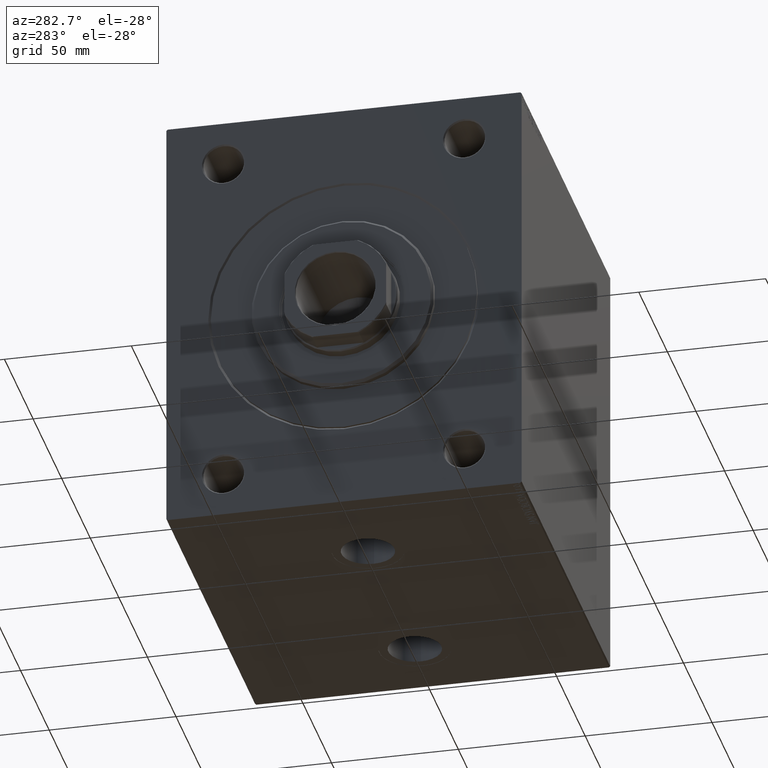
[diagram: clean part render]
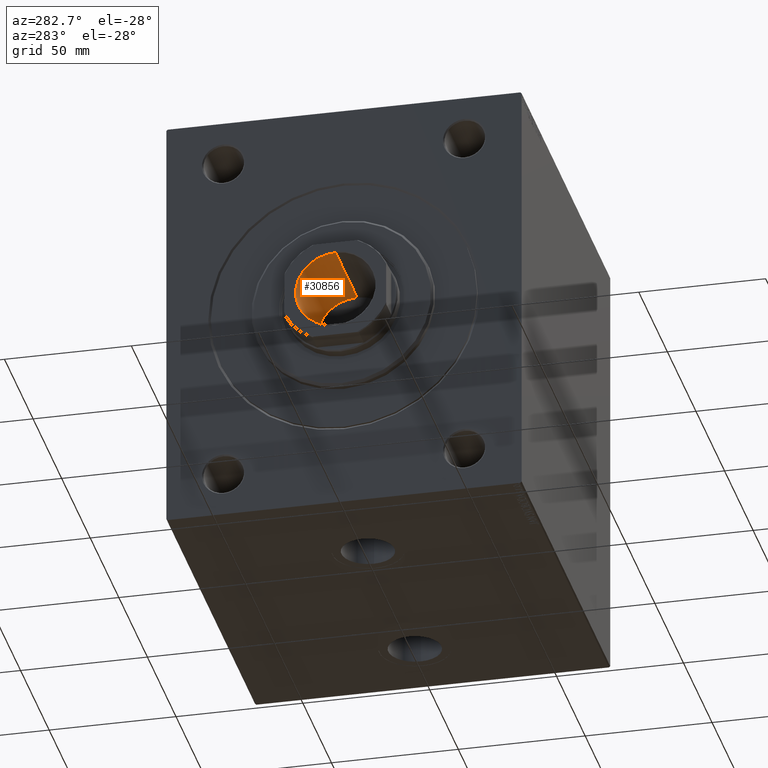
[diagram: same view with one face highlighted and labeled with its STEP entity id]
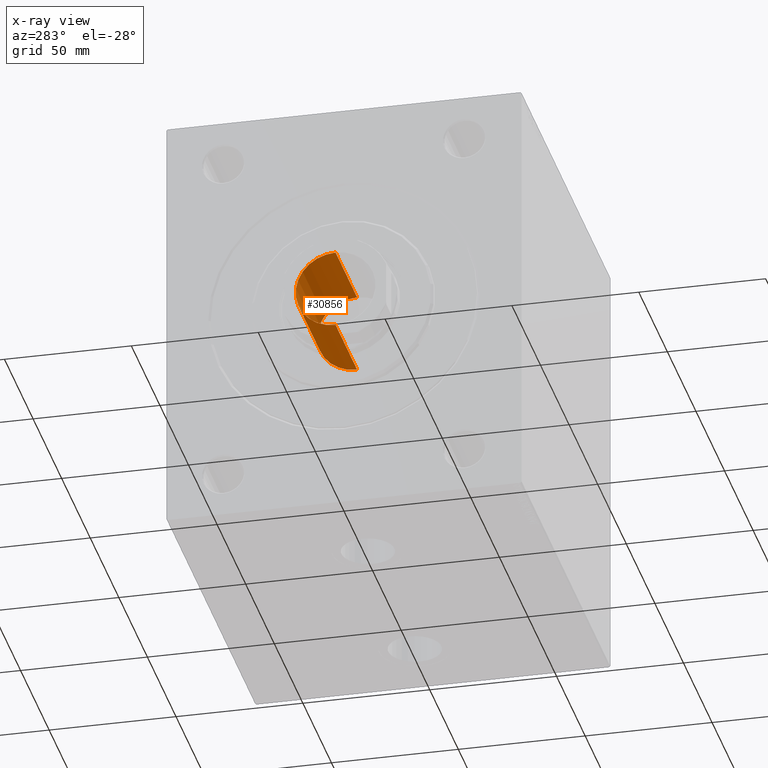
[diagram: x-ray of the same camera — body ghosted, the highlighted face saturated]
A machine part, auxiliary view. The second image highlights one B-rep face of the part: STEP entity #30856.
The next image is the same camera in x-ray: the body ghosted, the highlighted face saturated — about 0% of this face is hidden behind the body in this view.
In plain terms, the highlighted cylindrical surface (partial cylindrical patch) has radius 15.75 mm, axis along (-1, 0, 0).
Its self-contained STEP definition (entity closure, byte-faithful):
#455 = DIRECTION ( 'NONE',  ( -0.000000000000000000, -0.000000000000000000, 1.000000000000000000 ) ) ;
#719 = ORIENTED_EDGE ( 'NONE', *, *, #20264, .T. ) ;
#723 = CARTESIAN_POINT ( 'NONE',  ( 15.74999999999999289, 0.000000000000000000, 143.6999999999999602 ) ) ;
#2515 = LINE ( 'NONE', #37402, #18879 ) ;
#2877 = VERTEX_POINT ( 'NONE', #20070 ) ;
#3102 = AXIS2_PLACEMENT_3D ( 'NONE', #17177, #31255, #45357 ) ;
#4219 = DIRECTION ( 'NONE',  ( 1.000000000000000000, 0.000000000000000000, 0.000000000000000000 ) ) ;
#5141 = AXIS2_PLACEMENT_3D ( 'NONE', #21495, #455, #22420 ) ;
#5751 = DIRECTION ( 'NONE',  ( -0.000000000000000000, -0.000000000000000000, 1.000000000000000000 ) ) ;
#11061 = ORIENTED_EDGE ( 'NONE', *, *, #15377, .F. ) ;
#11613 = DIRECTION ( 'NONE',  ( -0.000000000000000000, -0.000000000000000000, 1.000000000000000000 ) ) ;
#12687 = CIRCLE ( 'NONE', #3102, 15.74999999999999289 ) ;
#12711 = VERTEX_POINT ( 'NONE', #723 ) ;
#15377 = EDGE_CURVE ( 'NONE', #2877, #36367, #2515, .T. ) ;
#17177 = CARTESIAN_POINT ( 'NONE',  ( 0.000000000000000000, 0.000000000000000000, 106.0000000000000142 ) ) ;
#18879 = VECTOR ( 'NONE', #5751, 1000.000000000000000 ) ;
#18938 = FACE_OUTER_BOUND ( 'NONE', #37905, .T. ) ;
#19240 = CARTESIAN_POINT ( 'NONE',  ( 0.000000000000000000, 0.000000000000000000, 143.6999999999999602 ) ) ;
#20070 = CARTESIAN_POINT ( 'NONE',  ( -15.74999999999999289, 1.928818708657080556E-15, 106.0000000000000142 ) ) ;
#20264 = EDGE_CURVE ( 'NONE', #12711, #36367, #42597, .T. ) ;
#21495 = CARTESIAN_POINT ( 'NONE',  ( 0.000000000000000000, 0.000000000000000000, 144.0000000000000284 ) ) ;
#22420 = DIRECTION ( 'NONE',  ( 1.000000000000000000, 0.000000000000000000, 0.000000000000000000 ) ) ;
#22675 = AXIS2_PLACEMENT_3D ( 'NONE', #19240, #36106, #4219 ) ;
#28472 = CARTESIAN_POINT ( 'NONE',  ( 15.74999999999999289, 0.000000000000000000, 144.0000000000000284 ) ) ;
#29383 = LINE ( 'NONE', #28472, #43727 ) ;
#29709 = CARTESIAN_POINT ( 'NONE',  ( 15.74999999999999289, 0.000000000000000000, 106.0000000000000142 ) ) ;
#30856 = ADVANCED_FACE ( 'NONE', ( #18938 ), #35810, .F. ) ;
#31112 = CARTESIAN_POINT ( 'NONE',  ( -15.74999999999999289, 1.928818708657080556E-15, 143.6999999999999602 ) ) ;
#31255 = DIRECTION ( 'NONE',  ( -0.000000000000000000, -0.000000000000000000, 1.000000000000000000 ) ) ;
#31373 = ORIENTED_EDGE ( 'NONE', *, *, #41984, .F. ) ;
#35810 = CYLINDRICAL_SURFACE ( 'NONE', #5141, 15.74999999999999289 ) ;
#36106 = DIRECTION ( 'NONE',  ( 0.000000000000000000, 0.000000000000000000, 1.000000000000000000 ) ) ;
#36367 = VERTEX_POINT ( 'NONE', #31112 ) ;
#37402 = CARTESIAN_POINT ( 'NONE',  ( -15.74999999999999289, 1.928818708657080556E-15, 144.0000000000000284 ) ) ;
#37905 = EDGE_LOOP ( 'NONE', ( #11061, #31373, #43655, #719 ) ) ;
#41469 = VERTEX_POINT ( 'NONE', #29709 ) ;
#41984 = EDGE_CURVE ( 'NONE', #41469, #2877, #12687, .T. ) ;
#42597 = CIRCLE ( 'NONE', #22675, 15.74999999999999289 ) ;
#43018 = EDGE_CURVE ( 'NONE', #41469, #12711, #29383, .T. ) ;
#43655 = ORIENTED_EDGE ( 'NONE', *, *, #43018, .T. ) ;
#43727 = VECTOR ( 'NONE', #11613, 1000.000000000000000 ) ;
#45357 = DIRECTION ( 'NONE',  ( 1.000000000000000000, 0.000000000000000000, 0.000000000000000000 ) ) ;